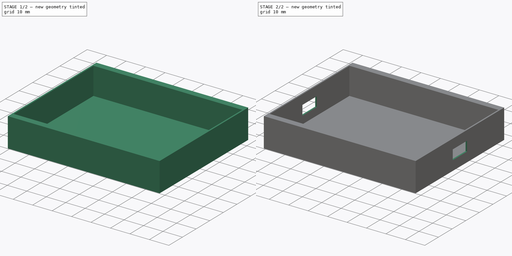
[diagram: build sequence overview — one tinted view per stage of 2, left to right]
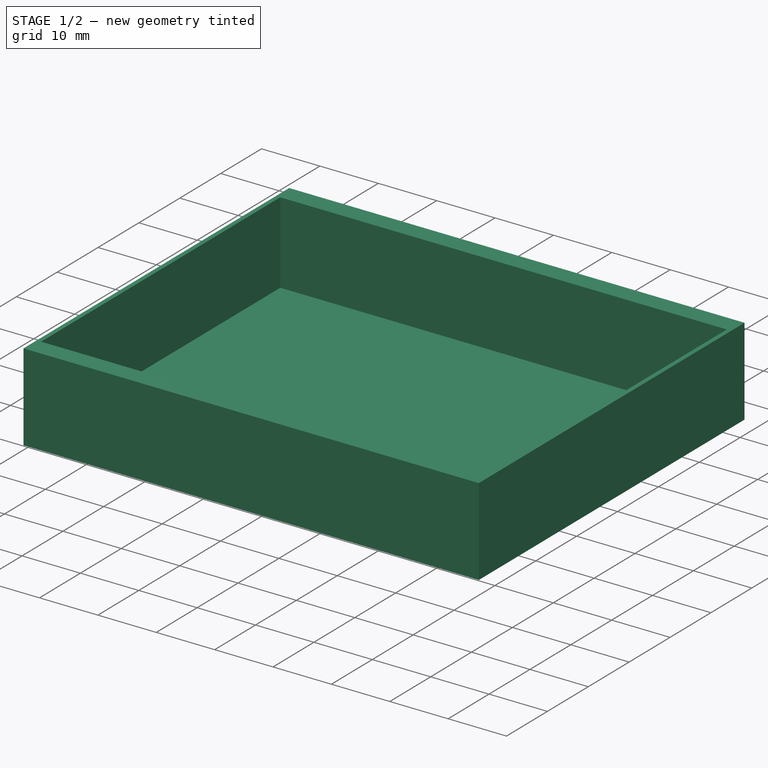
[diagram: stage 1 of 2 — iso view after this stage's code; geometry added in this stage tinted green]
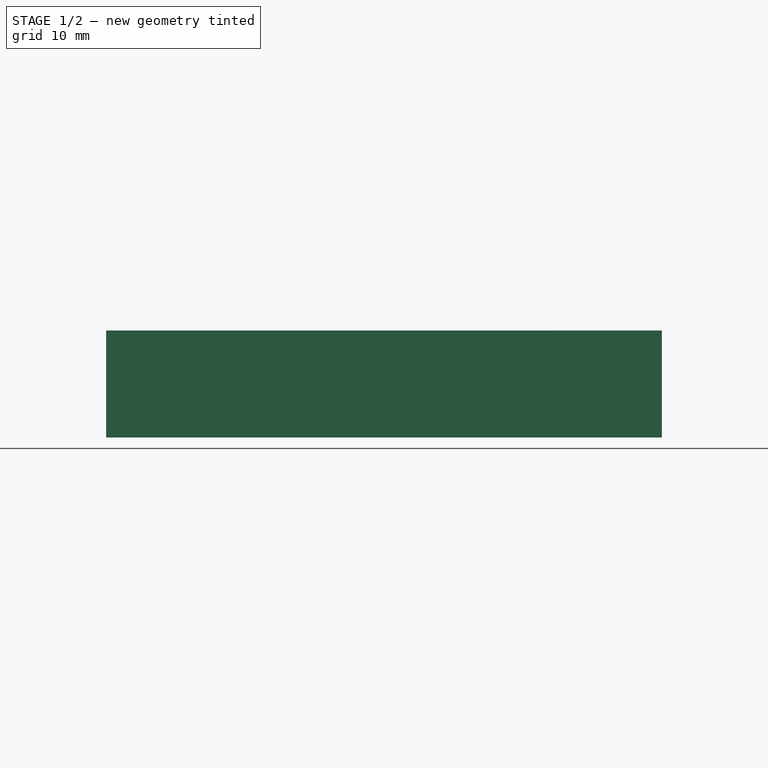
[diagram: stage 1 of 2 — front view after this stage's code; geometry added in this stage tinted green]
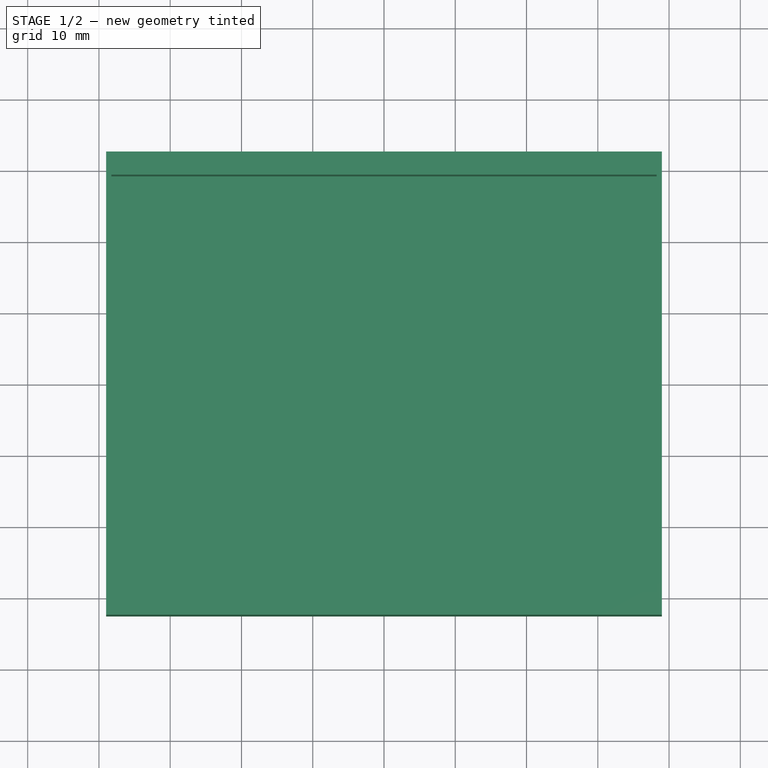
[diagram: stage 1 of 2 — top view after this stage's code; geometry added in this stage tinted green]
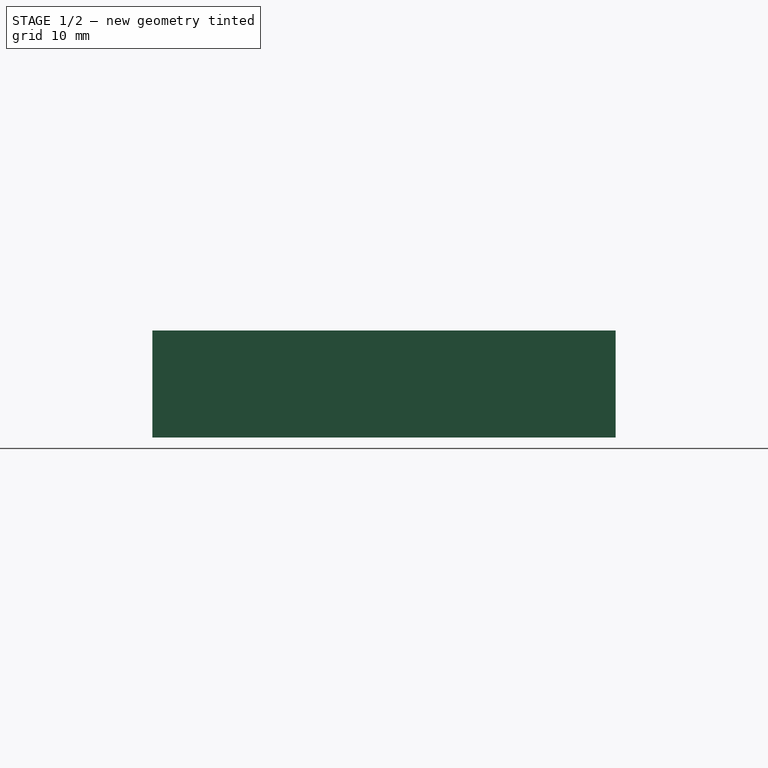
[diagram: stage 1 of 2 — right view after this stage's code; geometry added in this stage tinted green]
FCSTD DOCUMENT  (FreeCAD 0.20R29177 (Git))
Label: SOFT_STARTER_CASE_DESIGN
License: All rights reserved
LicenseURL: http://en.wikipedia.org/wiki/All_rights_reserved
objects: Sketcher::SketchObject×3, PartDesign::Pocket×2, PartDesign::Pad×1, PartDesign::Body×1
note: 10 computed .brp shape members not serialized (recipe doc carries the construction recipe); baked Part::Feature solids carry a one-line shape summary decoded from their .brp

FEATURE [Sketcher::SketchObject] Sketch  label="square"
  FullyConstrained = true
  MapMode = 5
  Support = -> [XY_Plane]
  sketch-geometry (17):
    g0: LineSegment StartX=-39 StartY=32.5 StartZ=0 EndX=39 EndY=32.5 EndZ=0
    g1: LineSegment StartX=39 StartY=32.5 StartZ=0 EndX=39 EndY=-32.5 EndZ=0
    g2: LineSegment StartX=-39 StartY=-32.5 StartZ=0 EndX=39 EndY=-32.5 EndZ=0
    g3: LineSegment StartX=-39 StartY=32.5 StartZ=0 EndX=-39 EndY=-32.5 EndZ=0
    g4: GeomPoint X=-39 Y=32.5 Z=0
    g5: GeomPoint X=-39 Y=32.5 Z=0
    g6: GeomPoint X=-39 Y=32.5 Z=0
    g7: GeomPoint X=-39 Y=-32.5 Z=0
    g8: GeomPoint X=-39 Y=32.5 Z=0
    g9: GeomPoint X=-39 Y=-32.5 Z=0
    g10: GeomPoint X=-39 Y=32.5 Z=0
    g11: GeomPoint X=39 Y=32.5 Z=0
    g12: GeomPoint X=39 Y=-32.5 Z=0
    g13: GeomPoint X=39 Y=32.5 Z=0
    g14: GeomPoint X=39 Y=32.5 Z=0
    g15: GeomPoint X=39 Y=32.5 Z=0
    g16: GeomPoint X=39 Y=32.5 Z=0
  constraints (25):
    c: Vertical(g1)
    c: Horizontal(g2)
    c: Vertical(g3)
    c: Coincident(g4,g3)
    c: Coincident(g5,g0)
    c: Coincident(g6,g3)
    c: Coincident(g7,g3)
    c: Coincident(g8,g3)
    c: Coincident(g9,g3)
    c: Coincident(g10,g0)
    c: Coincident(g11,g1)
    c: Coincident(g12,g1)
    c: Coincident(g13,g0)
    c: Coincident(g14,g0)
    c: Coincident(g15,g1)
    c: Coincident(g16,g0)
    c: Coincident(g0,g1)
    c: Coincident(g2,g1)
    c: Coincident(g2,g3)
    c: Coincident(g3,g0)
    c: Horizontal(g0)
    c: DistanceX(g0,g0) = 78
    c: DistanceY(g1,g1) = 65
    c: DistanceX(g-1,g1) = 39
    c: DistanceY(g1,g-1) = 32.5
FEATURE [PartDesign::Pad] Pad  label="Cube"
  Direction = (0,0,1)
  Length = 15
  Length2 = 20
  Profile = -> Sketch
  ReferenceAxis = -> Sketch [N_Axis]
  Type = 0
FEATURE [Sketcher::SketchObject] Sketch001
  FullyConstrained = true
  MapMode = 5
  Placement = pos=(0,0,15) rot=(0,0,1;0rad)
  Support = -> [Pad]
  sketch-geometry (4):
    g0: LineSegment StartX=38.25 StartY=29.25 StartZ=0 EndX=-38.25 EndY=29.25 EndZ=0
    g1: LineSegment StartX=-38.25 StartY=29.25 StartZ=0 EndX=-38.25 EndY=-29.25 EndZ=0
    g2: LineSegment StartX=38.25 StartY=29.25 StartZ=0 EndX=38.25 EndY=-29.25 EndZ=0
    g3: LineSegment StartX=38.25 StartY=-29.25 StartZ=0 EndX=-38.25 EndY=-29.25 EndZ=0
  constraints (12):
    c: Vertical(g2)
    c: Horizontal(g3)
    c: Coincident(g0,g1)
    c: Coincident(g1,g3)
    c: Coincident(g3,g2)
    c: Coincident(g2,g0)
    c: DistanceY(g1,g1) = 58.5
    c: Horizontal(g0)
    c: Vertical(g1)
    c: DistanceX(g0,g0) = 76.5
    c: DistanceX(g-1,g2) = 38.25
    c: DistanceY(g-1,g0) = 29.25
FEATURE [PartDesign::Pocket] Pocket
  BaseFeature = -> Pad
  Direction = (0,0,-1)
  Length = 14
  Length2 = 5
  Profile = -> Sketch001
  ReferenceAxis = -> Sketch001 [N_Axis]
  Type = 0
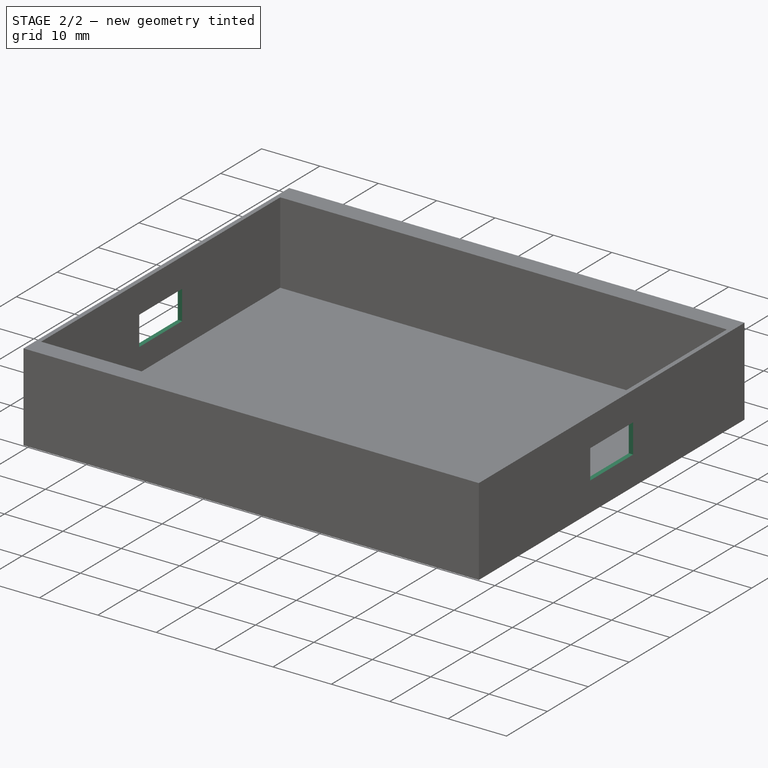
[diagram: stage 2 of 2 — iso view after this stage's code; geometry added in this stage tinted green]
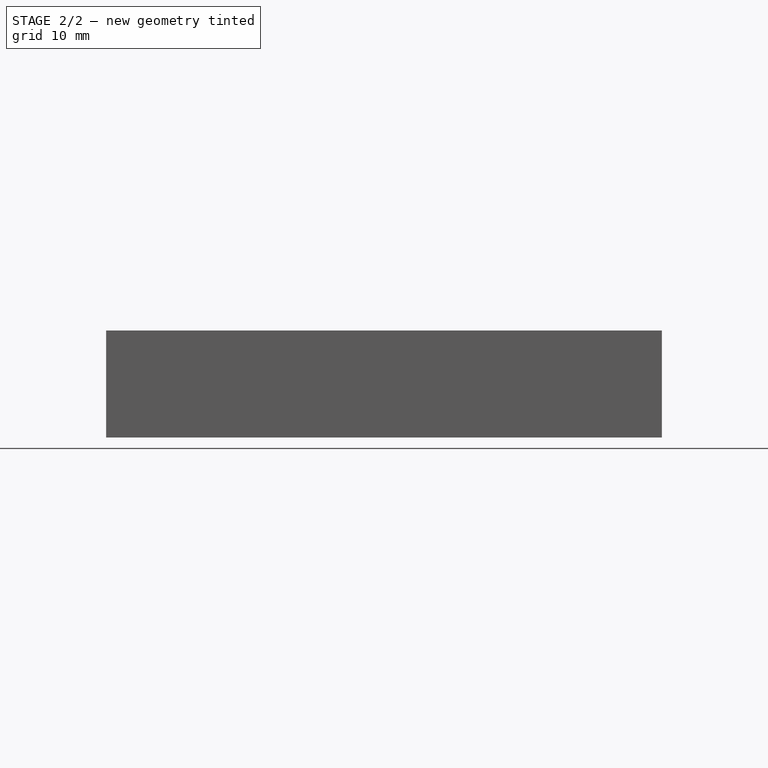
[diagram: stage 2 of 2 — front view after this stage's code; geometry added in this stage tinted green]
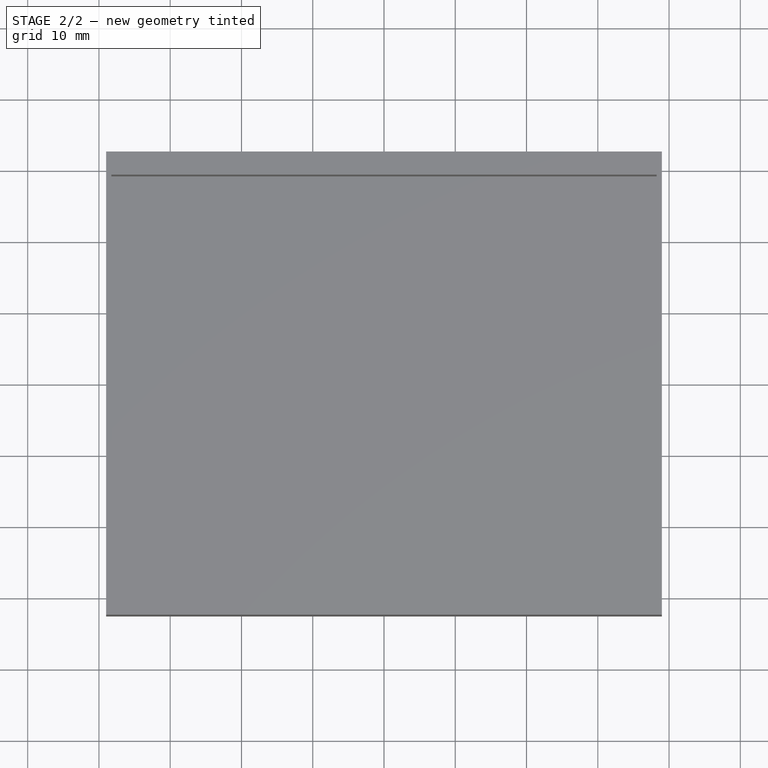
[diagram: stage 2 of 2 — top view after this stage's code; geometry added in this stage tinted green]
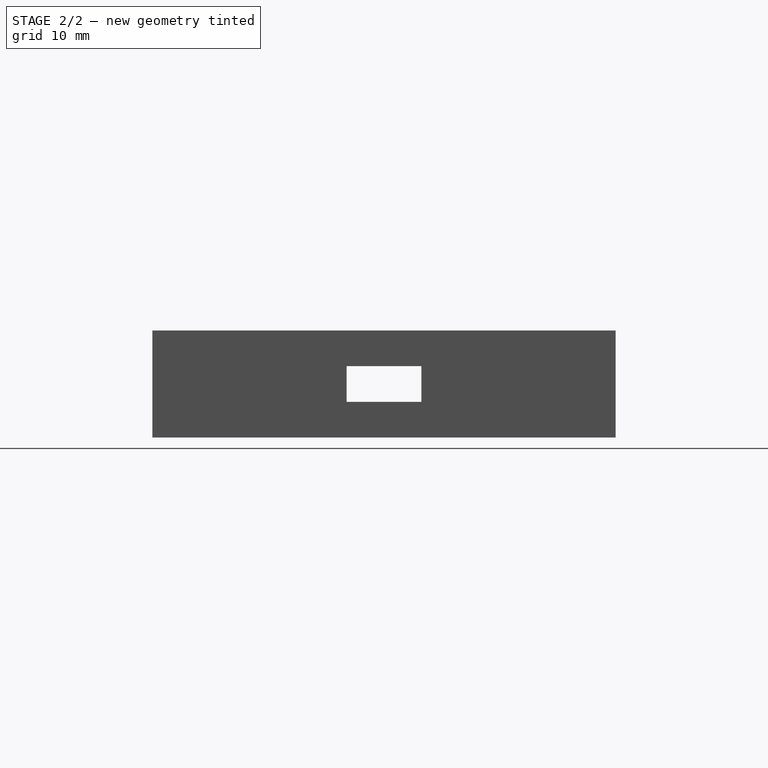
[diagram: stage 2 of 2 — right view after this stage's code; geometry added in this stage tinted green]
FEATURE [Sketcher::SketchObject] Sketch002
  FullyConstrained = true
  MapMode = 5
  Placement = pos=(39,0,0) rot=(0.57735,0.57735,0.57735;2.0944rad)
  Support = -> [Pocket]
  sketch-geometry (4):
    g0: LineSegment StartX=-5.25 StartY=10 StartZ=0 EndX=5.25 EndY=10 EndZ=0
    g1: LineSegment StartX=5.25 StartY=10 StartZ=0 EndX=5.25 EndY=5 EndZ=0
    g2: LineSegment StartX=-5.25 StartY=10 StartZ=0 EndX=-5.25 EndY=5 EndZ=0
    g3: LineSegment StartX=-5.25 StartY=5 StartZ=0 EndX=5.25 EndY=5 EndZ=0
  constraints (12):
    c: Horizontal(g0)
    c: Vertical(g1)
    c: Vertical(g2)
    c: Horizontal(g3)
    c: Coincident(g3,g1)
    c: Coincident(g0,g1)
    c: Coincident(g2,g0)
    c: Coincident(g2,g3)
    c: DistanceX(g0,g0) = 10.5
    c: DistanceY(g1,g1) = 5
    c: DistanceX(g-1,g1) = 5.25
    c: DistanceY(g-1,g2) = 5
FEATURE [PartDesign::Pocket] Pocket001
  BaseFeature = -> Pocket
  Direction = (-1,0,0)
  Length = 100
  Length2 = 5
  Profile = -> Sketch002
  ReferenceAxis = -> Sketch002 [N_Axis]
  Type = 0
FEATURE [PartDesign::Body] Body
  Group = -> [Sketch,Pad,Sketch001,Pocket,Sketch002,Pocket001]
  Origin = -> Origin
  Tip = -> Pocket001
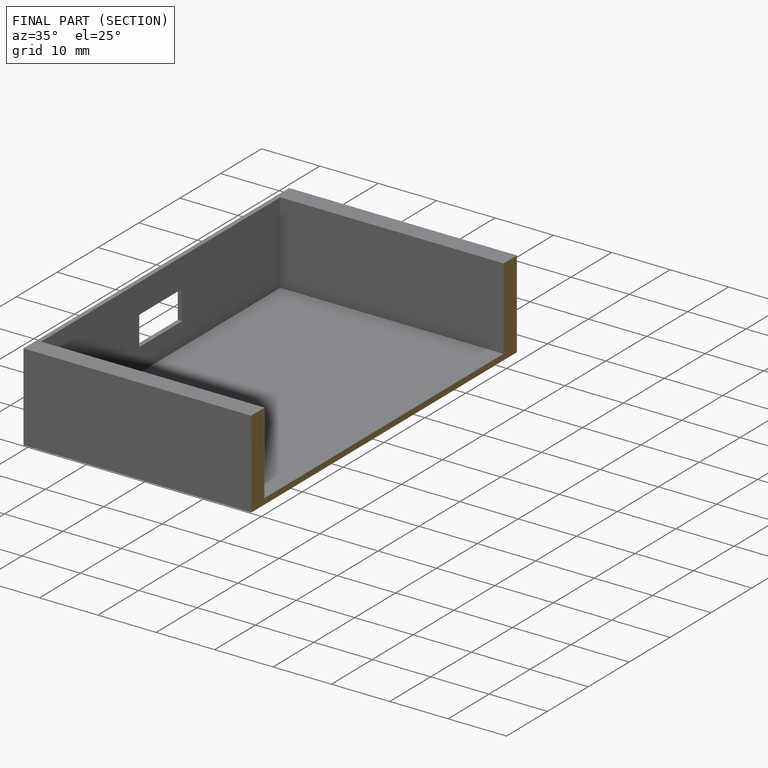
[diagram: finished part — half-section view (interior)]
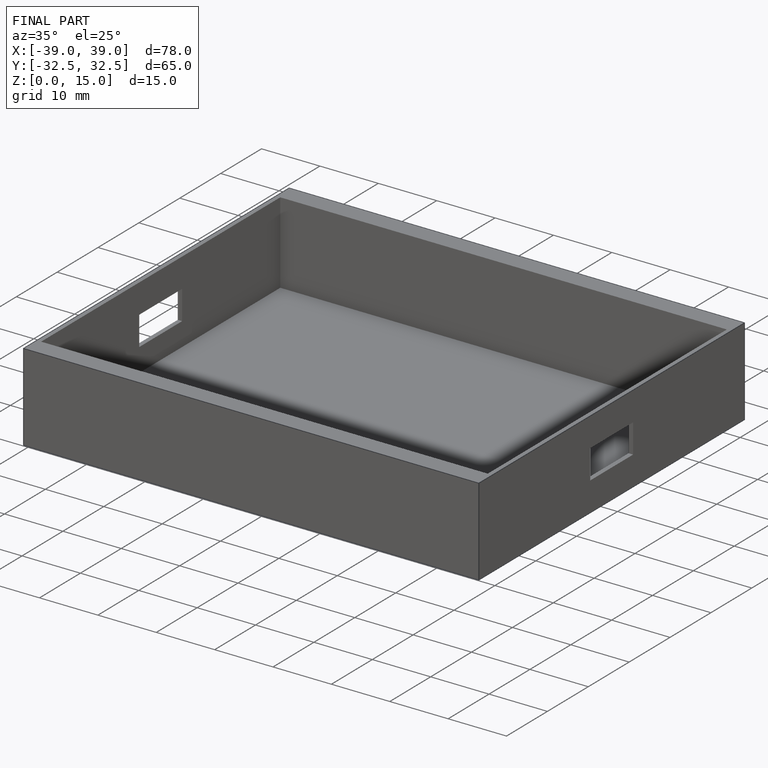
[diagram: finished part — iso view with bounding-box wireframe]
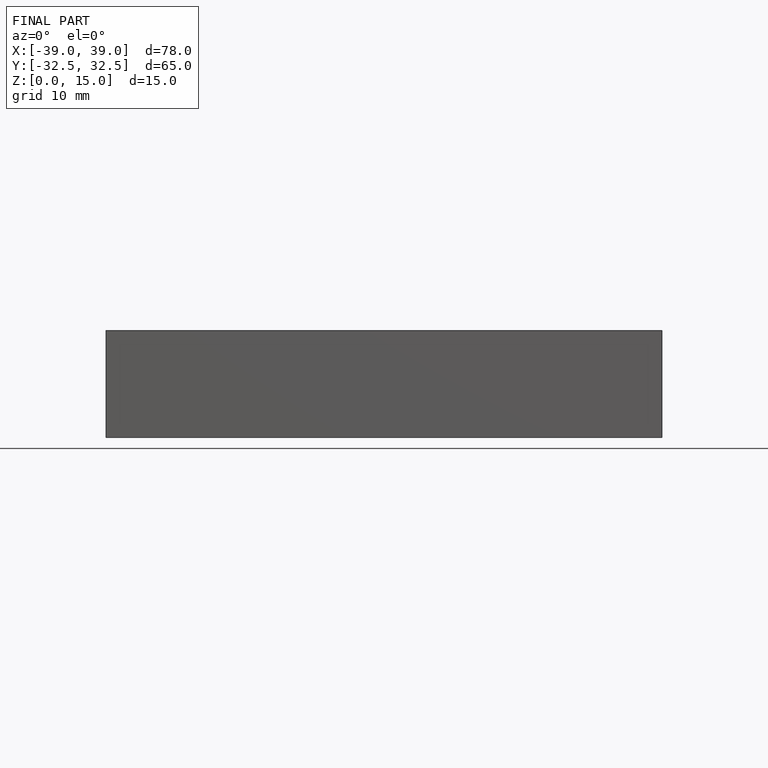
[diagram: finished part — front view with bounding-box wireframe]
